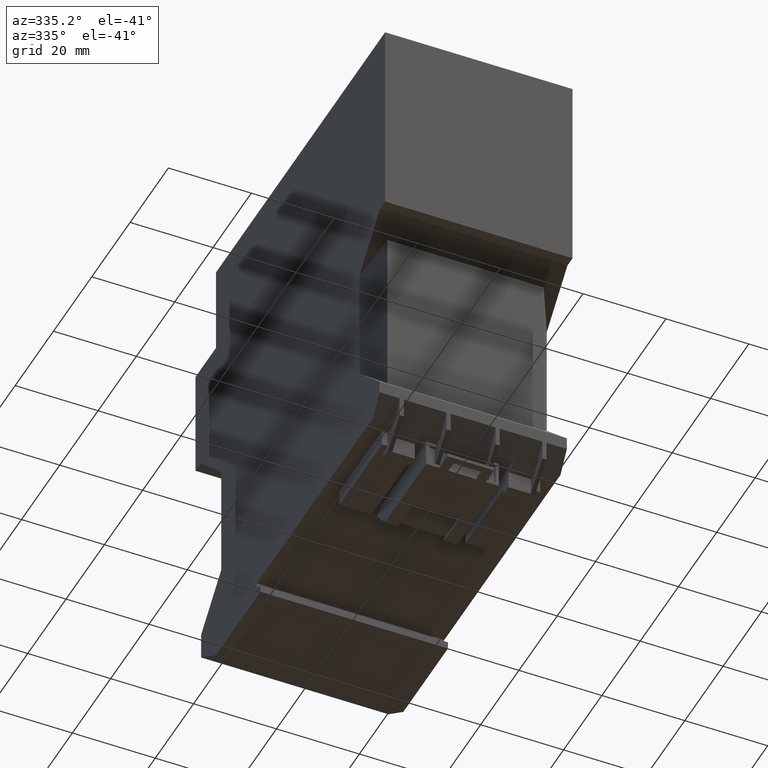
[diagram: clean part render]
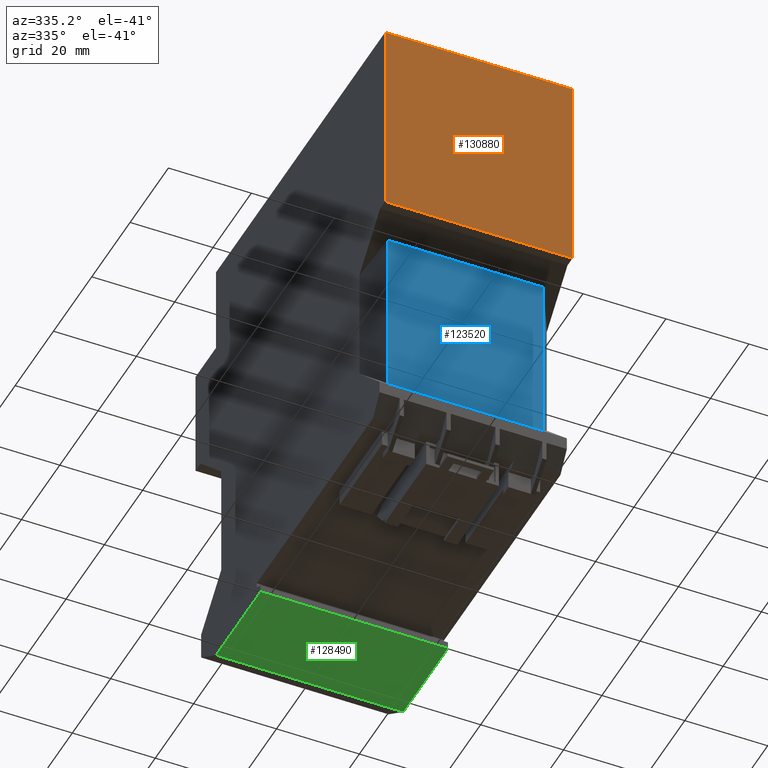
[diagram: same view with three faces highlighted in distinct colors, each labeled with its STEP entity id]
A machine part, auxiliary view with three faces highlighted in distinct colors.
Their STEP definitions:

[orange] entity #130880 — the highlighted planar face has unit normal (0, -1, 0).
#1240=CARTESIAN_POINT('',(-66.9999999999093,107.000000000009,-11.3));
#1250=VERTEX_POINT('',#1240);
#1280=CARTESIAN_POINT('',(-66.9999999999093,24.,-11.3));
#1290=DIRECTION('',(0.,1.,0.));
#1300=VECTOR('',#1290,1.);
#1310=LINE('',#1280,#1300);
#1320=CARTESIAN_POINT('',(-66.9999999999093,57.9000000000013,-11.3));
#1330=VERTEX_POINT('',#1320);
#1340=EDGE_CURVE('',#1330,#1250,#1310,.T.);
#19320=CARTESIAN_POINT('',(-66.9999999999093,57.9000000000013,-11.3));
#19330=DIRECTION('',(0.,0.,1.));
#19340=VECTOR('',#19330,1.);
#19350=LINE('',#19320,#19340);
#19360=CARTESIAN_POINT('',(-66.9999999999093,57.9000000000013,33.9));
#19370=VERTEX_POINT('',#19360);
#19380=EDGE_CURVE('',#1330,#19370,#19350,.T.);
#56690=CARTESIAN_POINT('',(-66.9999999999093,107.000000000009,33.9));
#56700=VERTEX_POINT('',#56690);
#56730=CARTESIAN_POINT('',(-66.9999999999093,107.000000000009,-11.3));
#56740=DIRECTION('',(0.,-8.76330016597908E-25,-1.));
#56750=VECTOR('',#56740,1.);
#56760=LINE('',#56730,#56750);
#56770=EDGE_CURVE('',#56700,#1250,#56760,.T.);
#125070=CARTESIAN_POINT('',(-66.9999999999093,24.,33.9));
#125080=DIRECTION('',(0.,1.,0.));
#125090=VECTOR('',#125080,1.);
#125100=LINE('',#125070,#125090);
#125110=EDGE_CURVE('',#19370,#56700,#125100,.T.);
#130770=CARTESIAN_POINT('',(-66.9999999999093,-8.00000000000051,0.));
#130780=DIRECTION('',(-1.,0.,0.));
#130790=DIRECTION('',(0.,1.,0.));
#130800=AXIS2_PLACEMENT_3D('',#130770,#130780,#130790);
#130810=PLANE('',#130800);
#130820=ORIENTED_EDGE('',*,*,#1340,.F.);
#130830=ORIENTED_EDGE('',*,*,#56770,.T.);
#130840=ORIENTED_EDGE('',*,*,#125110,.T.);
#130850=ORIENTED_EDGE('',*,*,#19380,.T.);
#130860=EDGE_LOOP('',(#130850,#130840,#130830,#130820));
#130870=FACE_OUTER_BOUND('',#130860,.T.);
#130880=ADVANCED_FACE('',(#130870),#130810,.T.);

[blue] entity #123520 — the highlighted planar face has unit normal (-0, -1, 0).
#123130=CARTESIAN_POINT('',(-60.050000000002,68.5000000000004,
-1.90176763226191E-11));
#123140=DIRECTION('',(-1.,6.6E-15,-4.528E-13));
#123150=DIRECTION('',(-4.528E-13,0.,1.));
#123160=AXIS2_PLACEMENT_3D('',#123130,#123140,#123150);
#123170=PLANE('',#123160);
#123180=CARTESIAN_POINT('',(-60.0499999999989,24.,-7.54722325026908));
#123190=DIRECTION('',(-6.60000000000173E-15,-1.,3.8105117766525E-15));
#123200=VECTOR('',#123190,1.);
#123210=LINE('',#123180,#123200);
#123220=CARTESIAN_POINT('',(-60.0499999999987,53.599999999998,
-7.54722325026919));
#123230=VERTEX_POINT('',#123220);
#123240=CARTESIAN_POINT('',(-60.049999999999,12.0000000000025,
-7.54722325026901));
#123250=VERTEX_POINT('',#123240);
#123260=EDGE_CURVE('',#123230,#123250,#123210,.T.);
#123270=ORIENTED_EDGE('',*,*,#123260,.T.);
#123280=CARTESIAN_POINT('',(-60.049999999997,53.5999999999963,-11.3));
#123290=DIRECTION('',(4.52799999999997E-13,-4.52799999999993E-13,-1.));
#123300=VECTOR('',#123290,1.);
#123310=LINE('',#123280,#123300);
#123320=CARTESIAN_POINT('',(-60.0500000000158,53.600000000015,
30.1472232502651));
#123330=VERTEX_POINT('',#123320);
#123340=EDGE_CURVE('',#123330,#123230,#123310,.T.);
#123350=ORIENTED_EDGE('',*,*,#123340,.T.);
#123360=CARTESIAN_POINT('',(-60.0500000000057,24.,30.147223250265));
#123370=DIRECTION('',(6.59999999999827E-15,1.,3.81051177665051E-15));
#123380=VECTOR('',#123370,1.);
#123390=LINE('',#123360,#123380);
#123400=CARTESIAN_POINT('',(-60.0500000000161,11.9999999999855,
30.1472232502649));
#123410=VERTEX_POINT('',#123400);
#123420=EDGE_CURVE('',#123410,#123330,#123390,.T.);
#123430=ORIENTED_EDGE('',*,*,#123420,.T.);
#123440=CARTESIAN_POINT('',(-60.0499999999973,12.0000000000043,-11.3));
#123450=DIRECTION('',(4.52800000000003E-13,4.52799999999919E-13,-1.));
#123460=VECTOR('',#123450,1.);
#123470=LINE('',#123440,#123460);
#123480=EDGE_CURVE('',#123410,#123250,#123470,.T.);
#123490=ORIENTED_EDGE('',*,*,#123480,.F.);
#123500=EDGE_LOOP('',(#123490,#123430,#123350,#123270));
#123510=FACE_OUTER_BOUND('',#123500,.T.);
#123520=ADVANCED_FACE('',(#123510),#123170,.T.);

[green] entity #128490 — the highlighted planar face has unit normal (0, -0, 1).
#360=CARTESIAN_POINT('',(-2.00000000000178,-4.00000000000004,-11.3));
#370=VERTEX_POINT('',#360);
#400=CARTESIAN_POINT('',(24.,-4.00000000000004,-11.3));
#410=DIRECTION('',(1.,4.80965890943096E-26,0.));
#420=VECTOR('',#410,1.);
#430=LINE('',#400,#420);
#440=CARTESIAN_POINT('',(21.3380007636733,-4.00000000000004,-11.3));
#450=VERTEX_POINT('',#440);
#460=EDGE_CURVE('',#370,#450,#430,.T.);
#125680=CARTESIAN_POINT('',(21.3380007636528,-3.99999999998567,33.9));
#125690=VERTEX_POINT('',#125680);
#125720=CARTESIAN_POINT('',(24.,-4.00000000000009,33.9));
#125730=DIRECTION('',(1.,4.80965890943096E-26,0.));
#125740=VECTOR('',#125730,1.);
#125750=LINE('',#125720,#125740);
#125760=CARTESIAN_POINT('',(-2.00000000000178,-4.00000000000022,33.9));
#125770=VERTEX_POINT('',#125760);
#125780=EDGE_CURVE('',#125770,#125690,#125750,.T.);
#128150=CARTESIAN_POINT('',(21.3380007636733,-4.00000000000004,-11.3));
#128160=DIRECTION('',(-9.11449562199973E-13,-3.85644490616134E-15,1.));
#128170=VECTOR('',#128160,1.);
#128180=LINE('',#128150,#128170);
#128190=EDGE_CURVE('',#450,#125690,#128180,.T.);
#128330=CARTESIAN_POINT('',(-1.50000000020122,-4.00000000000009,
1.63988644885649E-9));
#128340=DIRECTION('',(-4.80965890943096E-26,1.,3.85644490616134E-15));
#128350=DIRECTION('',(-1.,4.80965890943096E-26,-2.49434856530515E-11));
#128360=AXIS2_PLACEMENT_3D('',#128330,#128340,#128350);
#128370=PLANE('',#128360);
#128380=ORIENTED_EDGE('',*,*,#460,.T.);
#128390=CARTESIAN_POINT('',(-2.00000000000178,-4.00000000000004,-11.3));
#128400=DIRECTION('',(-0.,-3.85644490616134E-15,1.));
#128410=VECTOR('',#128400,1.);
#128420=LINE('',#128390,#128410);
#128430=EDGE_CURVE('',#370,#125770,#128420,.T.);
#128440=ORIENTED_EDGE('',*,*,#128430,.F.);
#128450=ORIENTED_EDGE('',*,*,#125780,.F.);
#128460=ORIENTED_EDGE('',*,*,#128190,.T.);
#128470=EDGE_LOOP('',(#128460,#128450,#128440,#128380));
#128480=FACE_OUTER_BOUND('',#128470,.T.);
#128490=ADVANCED_FACE('',(#128480),#128370,.F.);